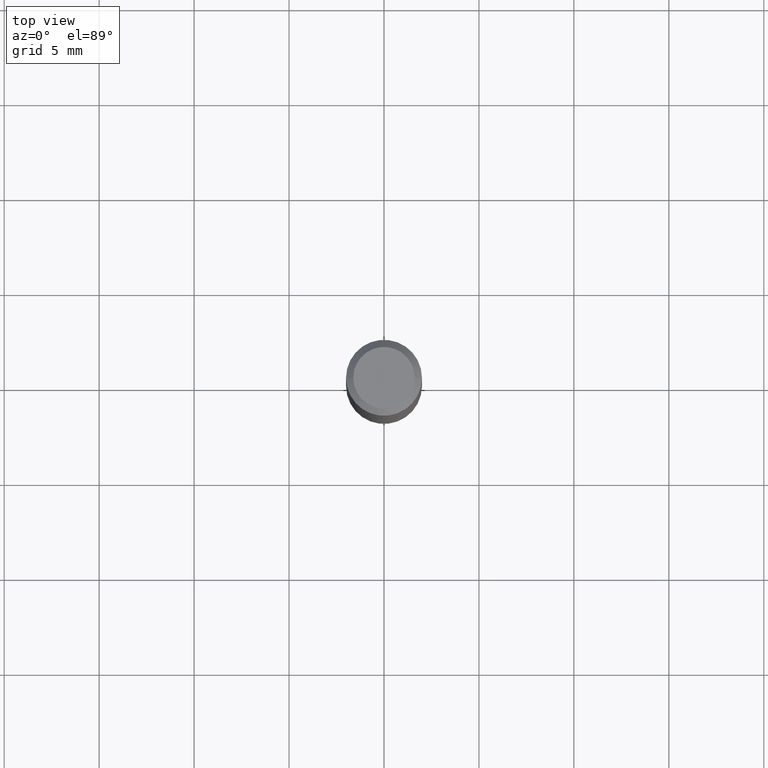
[diagram: clean part render]
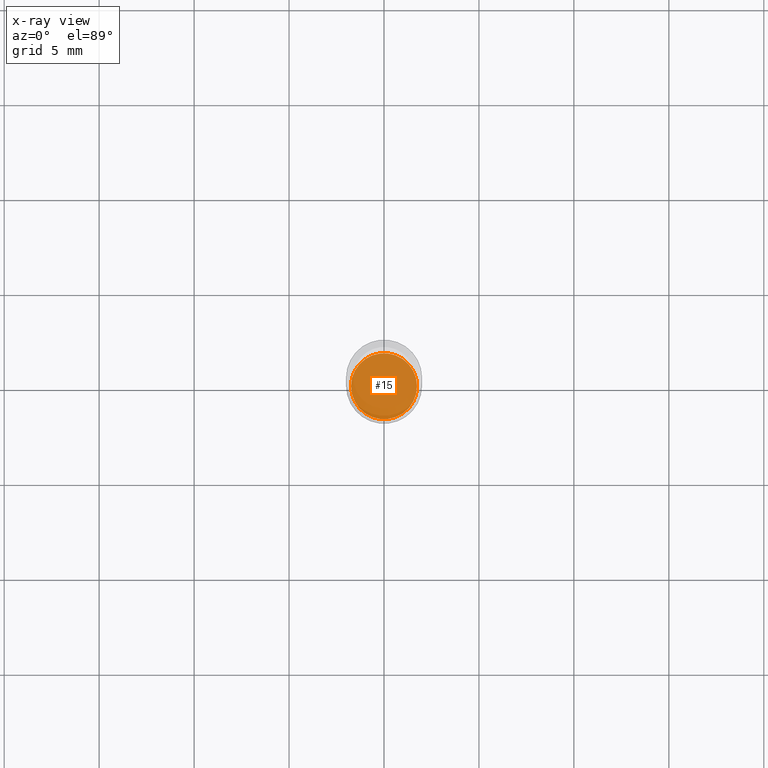
[diagram: x-ray — body ghosted, one internal face saturated and labeled with its STEP entity id]
A machine part, top view, then the same camera in x-ray: the body is ghosted and one INTERNAL B-rep face — a face not visible from any outside direction — is saturated and labeled: STEP entity #15.
In plain terms, the highlighted planar face has unit normal (-0, 0, 1).
Its self-contained STEP definition (entity closure, byte-faithful):
#3 = EDGE_LOOP ( 'NONE', ( #211, #59 ) ) ;
#7 = CARTESIAN_POINT ( 'NONE',  ( 2.512963745235846851E-29, -3.587846223795217707E-15, -1.027600000000000291 ) ) ;
#15 = ADVANCED_FACE ( 'NONE', ( #103 ), #69, .F. ) ;
#35 = VERTEX_POINT ( 'NONE', #403 ) ;
#40 = DIRECTION ( 'NONE',  ( 1.000000000000000000, -6.982962677686265922E-15, 4.876176775795935793E-29 ) ) ;
#59 = ORIENTED_EDGE ( 'NONE', *, *, #62, .F. ) ;
#62 = EDGE_CURVE ( 'NONE', #35, #336, #234, .T. ) ;
#69 = PLANE ( 'NONE',  #251 ) ;
#103 = FACE_OUTER_BOUND ( 'NONE', #3, .T. ) ;
#115 = AXIS2_PLACEMENT_3D ( 'NONE', #127, #233, #422 ) ;
#127 = CARTESIAN_POINT ( 'NONE',  ( 2.512963745235846851E-29, -3.587846223795217707E-15, -1.027600000000000291 ) ) ;
#152 = DIRECTION ( 'NONE',  ( 1.000000000000000000, -6.982962677686265922E-15, 0.000000000000000000 ) ) ;
#156 = AXIS2_PLACEMENT_3D ( 'NONE', #7, #362, #152 ) ;
#188 = CARTESIAN_POINT ( 'NONE',  ( 0.06840000000000000246, -4.065480870948958439E-15, -1.027600000000000291 ) ) ;
#211 = ORIENTED_EDGE ( 'NONE', *, *, #300, .F. ) ;
#233 = DIRECTION ( 'NONE',  ( -2.445468806185136597E-29, 3.491481338843145583E-15, 1.000000000000000000 ) ) ;
#234 = CIRCLE ( 'NONE', #115, 0.06840000000000000246 ) ;
#251 = AXIS2_PLACEMENT_3D ( 'NONE', #330, #264, #40 ) ;
#264 = DIRECTION ( 'NONE',  ( -2.438088387897960049E-29, 3.491481338843145188E-15, 1.000000000000000000 ) ) ;
#300 = EDGE_CURVE ( 'NONE', #336, #35, #410, .T. ) ;
#330 = CARTESIAN_POINT ( 'NONE',  ( 2.512963745235846851E-29, -3.587846223795217707E-15, -1.027600000000000291 ) ) ;
#336 = VERTEX_POINT ( 'NONE', #188 ) ;
#362 = DIRECTION ( 'NONE',  ( -2.445468806185136597E-29, 3.491481338843145583E-15, 1.000000000000000000 ) ) ;
#403 = CARTESIAN_POINT ( 'NONE',  ( -0.06840000000000000246, -3.099185765361196680E-15, -1.027600000000000291 ) ) ;
#410 = CIRCLE ( 'NONE', #156, 0.06840000000000000246 ) ;
#422 = DIRECTION ( 'NONE',  ( 1.000000000000000000, -6.982962677686265922E-15, 0.000000000000000000 ) ) ;